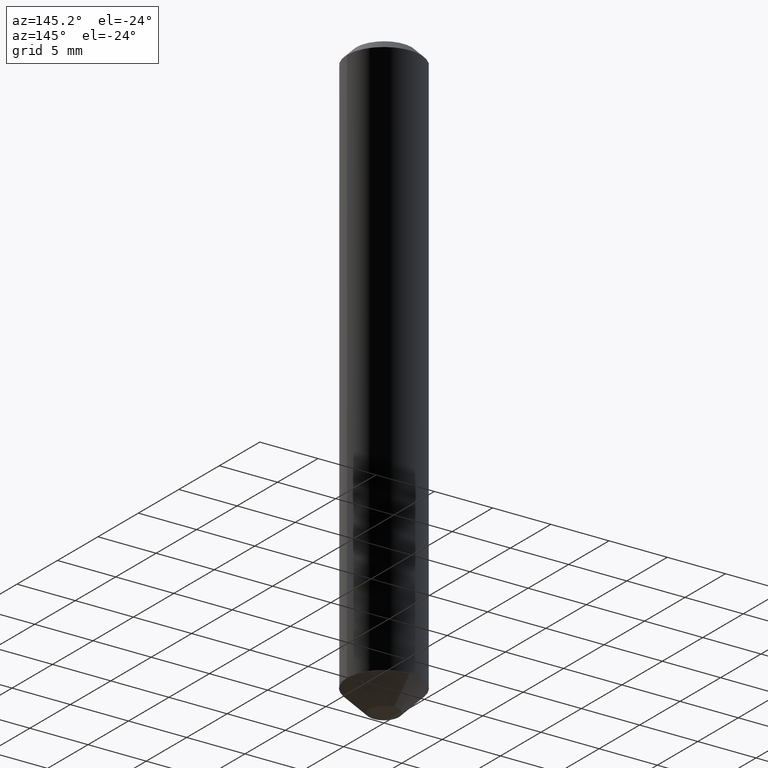
[diagram: clean part render]
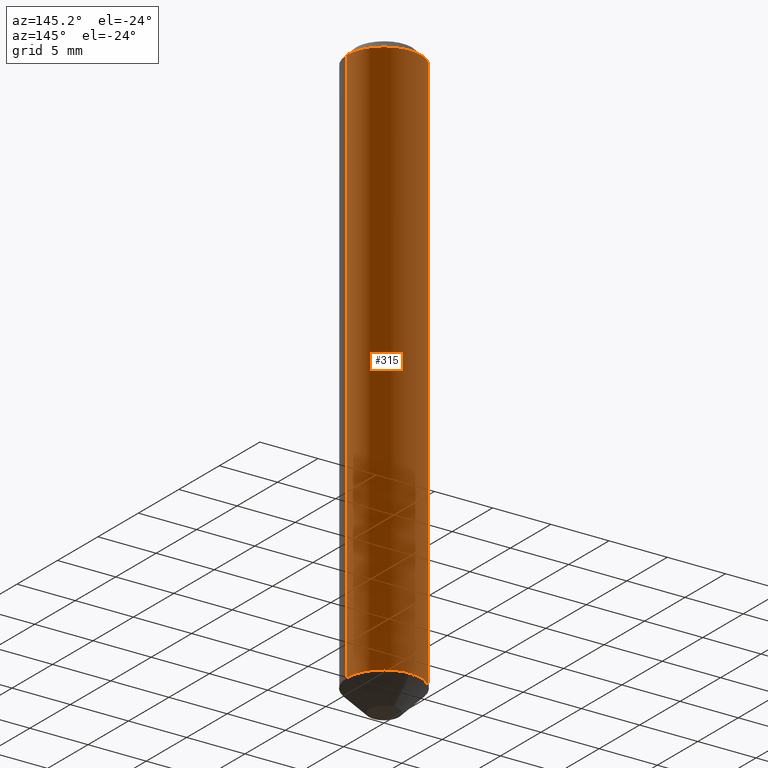
[diagram: same view with one face highlighted and labeled with its STEP entity id]
A machine part, auxiliary view. The second image highlights one B-rep face of the part: STEP entity #315.
In plain terms, the highlighted cylindrical surface (partial cylindrical patch) has radius 3.175 mm, axis along (-0, 0, 1).
Its self-contained STEP definition (entity closure, byte-faithful):
#11 = VERTEX_POINT ( 'NONE', #14 ) ;
#13 = DIRECTION ( 'NONE',  ( -2.445468806185136597E-29, 3.491481338843145583E-15, 1.000000000000000000 ) ) ;
#14 = CARTESIAN_POINT ( 'NONE',  ( 0.1250000000000000000, -9.819791265496324395E-16, -0.03125000000000021511 ) ) ;
#16 = VECTOR ( 'NONE', #103, 39.37007874015748143 ) ;
#20 = AXIS2_PLACEMENT_3D ( 'NONE', #172, #309, #207 ) ;
#23 = ORIENTED_EDGE ( 'NONE', *, *, #272, .F. ) ;
#32 = CARTESIAN_POINT ( 'NONE',  ( 0.1250000000000001110, -8.728703347107842263E-16, 6.095220969744926047E-30 ) ) ;
#41 = CARTESIAN_POINT ( 'NONE',  ( -0.1250000000000001110, 8.881784197001260212E-16, -6.148668862818637832E-30 ) ) ;
#60 = CIRCLE ( 'NONE', #186, 0.1250000000000002498 ) ;
#62 = VERTEX_POINT ( 'NONE', #228 ) ;
#78 = CARTESIAN_POINT ( 'NONE',  ( 7.642090019328604414E-31, -1.091087918388490513E-16, -0.03125000000000021511 ) ) ;
#92 = DIRECTION ( 'NONE',  ( -2.445468806185136597E-29, 3.491481338843145583E-15, 1.000000000000000000 ) ) ;
#99 = LINE ( 'NONE', #41, #16 ) ;
#103 = DIRECTION ( 'NONE',  ( -2.445468806185136877E-29, 3.491481338843145188E-15, 1.000000000000000000 ) ) ;
#115 = VECTOR ( 'NONE', #295, 39.37007874015748143 ) ;
#120 = AXIS2_PLACEMENT_3D ( 'NONE', #78, #13, #391 ) ;
#126 = VERTEX_POINT ( 'NONE', #143 ) ;
#143 = CARTESIAN_POINT ( 'NONE',  ( -0.1250000000000000000, -2.526053894521113887E-15, -0.03125000000000021511 ) ) ;
#149 = ORIENTED_EDGE ( 'NONE', *, *, #301, .T. ) ;
#160 = EDGE_CURVE ( 'NONE', #11, #126, #180, .T. ) ;
#172 = CARTESIAN_POINT ( 'NONE',  ( 0.000000000000000000, 0.000000000000000000, 0.000000000000000000 ) ) ;
#176 = FACE_OUTER_BOUND ( 'NONE', #358, .T. ) ;
#180 = CIRCLE ( 'NONE', #120, 0.1250000000000000000 ) ;
#186 = AXIS2_PLACEMENT_3D ( 'NONE', #402, #92, #327 ) ;
#200 = ORIENTED_EDGE ( 'NONE', *, *, #202, .T. ) ;
#202 = EDGE_CURVE ( 'NONE', #300, #62, #60, .T. ) ;
#207 = DIRECTION ( 'NONE',  ( 1.000000000000000000, -6.982962677686267499E-15, 4.876176775795936353E-29 ) ) ;
#228 = CARTESIAN_POINT ( 'NONE',  ( -0.1250000000000002498, -5.831177416903507061E-15, -1.924499999999999877 ) ) ;
#250 = ORIENTED_EDGE ( 'NONE', *, *, #160, .F. ) ;
#272 = EDGE_CURVE ( 'NONE', #300, #11, #333, .T. ) ;
#295 = DIRECTION ( 'NONE',  ( -2.445468806185136877E-29, 3.491481338843145188E-15, 1.000000000000000000 ) ) ;
#300 = VERTEX_POINT ( 'NONE', #354 ) ;
#301 = EDGE_CURVE ( 'NONE', #62, #126, #99, .T. ) ;
#307 = CYLINDRICAL_SURFACE ( 'NONE', #20, 0.1250000000000001110 ) ;
#309 = DIRECTION ( 'NONE',  ( -2.445468806185136597E-29, 3.491481338843145583E-15, 1.000000000000000000 ) ) ;
#315 = ADVANCED_FACE ( 'NONE', ( #176 ), #307, .T. ) ;
#327 = DIRECTION ( 'NONE',  ( 1.000000000000000000, -6.982962677686264344E-15, 0.000000000000000000 ) ) ;
#333 = LINE ( 'NONE', #32, #115 ) ;
#354 = CARTESIAN_POINT ( 'NONE',  ( 0.1250000000000002498, -7.592226171314417999E-15, -1.924499999999999877 ) ) ;
#358 = EDGE_LOOP ( 'NONE', ( #200, #149, #250, #23 ) ) ;
#391 = DIRECTION ( 'NONE',  ( 1.000000000000000000, -6.982962677686266711E-15, 0.000000000000000000 ) ) ;
#402 = CARTESIAN_POINT ( 'NONE',  ( 4.706304717503294923E-29, -6.719355836603633871E-15, -1.924499999999999877 ) ) ;